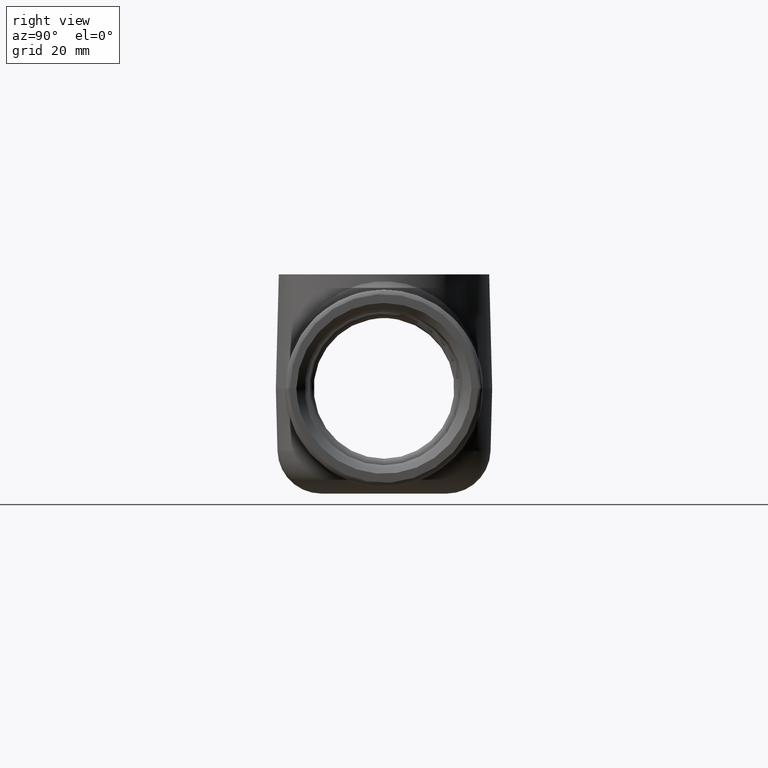
[diagram: clean part render]
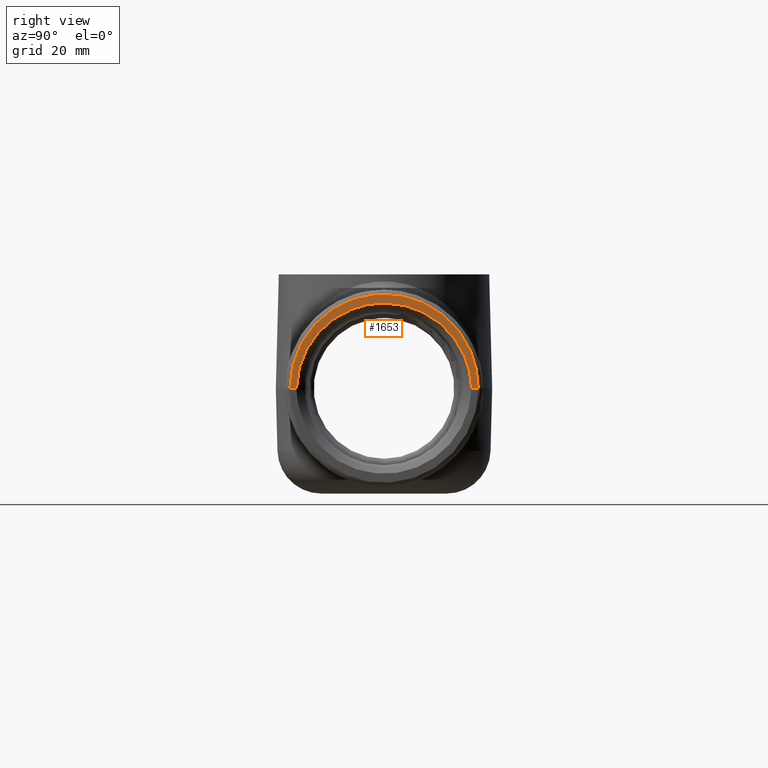
[diagram: same view with one face highlighted and labeled with its STEP entity id]
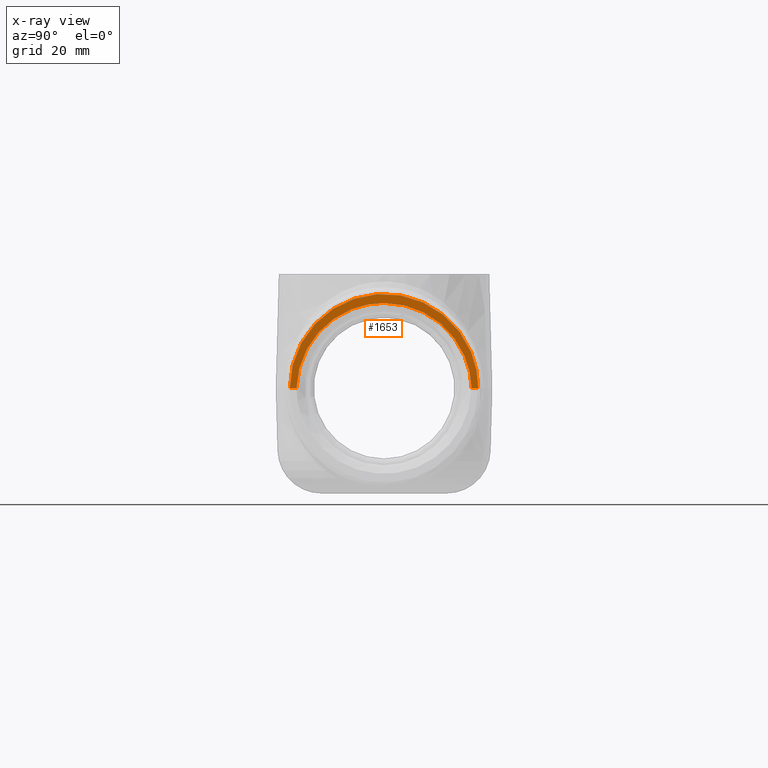
[diagram: x-ray of the same camera — body ghosted, the highlighted face saturated]
A machine part, right view. The second image highlights one B-rep face of the part: STEP entity #1653.
The next image is the same camera in x-ray: the body ghosted, the highlighted face saturated — about 0% of this face is hidden behind the body in this view.
In plain terms, the highlighted planar face has unit normal (-0.9997, 0, -0.0262).
Its self-contained STEP definition (entity closure, byte-faithful):
#67=ELLIPSE('',#1785,1.34346037031524,1.343);
#68=ELLIPSE('',#1786,1.25128650088097,1.25042878458186);
#69=ELLIPSE('',#1787,1.25128650088097,1.25042878458186);
#97=PLANE('',#1784);
#147=FACE_OUTER_BOUND('',#247,.T.);
#247=EDGE_LOOP('',(#1129,#1130,#1131,#1132,#1133));
#354=LINE('',#2641,#434);
#355=LINE('',#2645,#435);
#434=VECTOR('',#2010,0.0929989874574439);
#435=VECTOR('',#2013,0.0929989874574444);
#691=VERTEX_POINT('',#2639);
#692=VERTEX_POINT('',#2640);
#693=VERTEX_POINT('',#2642);
#694=VERTEX_POINT('',#2644);
#695=VERTEX_POINT('',#2646);
#861=EDGE_CURVE('',#691,#692,#354,.T.);
#862=EDGE_CURVE('',#692,#693,#67,.F.);
#863=EDGE_CURVE('',#693,#694,#355,.T.);
#864=EDGE_CURVE('',#695,#694,#68,.F.);
#865=EDGE_CURVE('',#691,#695,#69,.F.);
#1129=ORIENTED_EDGE('',*,*,#861,.T.);
#1130=ORIENTED_EDGE('',*,*,#862,.T.);
#1131=ORIENTED_EDGE('',*,*,#863,.T.);
#1132=ORIENTED_EDGE('',*,*,#864,.F.);
#1133=ORIENTED_EDGE('',*,*,#865,.F.);
#1653=ADVANCED_FACE('',(#147),#97,.F.);
#1784=AXIS2_PLACEMENT_3D('',#2638,#2008,#2009);
#1785=AXIS2_PLACEMENT_3D('',#2643,#2011,#2012);
#1786=AXIS2_PLACEMENT_3D('',#2647,#2014,#2015);
#1787=AXIS2_PLACEMENT_3D('',#2648,#2016,#2017);
#2008=DIRECTION('center_axis',(-0.999657324975557,0.,-0.0261769483078732));
#2009=DIRECTION('ref_axis',(-0.0261769483078732,0.,0.999657324975557));
#2010=DIRECTION('',(0.,1.,0.));
#2011=DIRECTION('center_axis',(-0.999657324975557,0.,-0.0261769483078732));
#2012=DIRECTION('ref_axis',(0.0261769483078731,0.,-0.999657324975557));
#2013=DIRECTION('',(0.,1.,0.));
#2014=DIRECTION('center_axis',(-0.999657324975557,0.,-0.0261769483078732));
#2015=DIRECTION('ref_axis',(0.0261769483078731,0.,-0.999657324975557));
#2016=DIRECTION('center_axis',(-0.999657324975557,0.,-0.0261769483078732));
#2017=DIRECTION('ref_axis',(0.0261769483078731,0.,-0.999657324975557));
#2638=CARTESIAN_POINT('Origin',(4.73005212254993,0.,0.));
#2639=CARTESIAN_POINT('',(4.73005212254993,1.25,5.06245581325909E-15));
#2640=CARTESIAN_POINT('',(4.73005212254993,1.34299898745744,0.));
#2641=CARTESIAN_POINT('',(4.73005212254993,1.25,0.));
#2642=CARTESIAN_POINT('',(4.73005212254993,-1.34299898745744,0.));
#2643=CARTESIAN_POINT('Origin',(4.73000893809646,0.,0.00164914774339601));
#2644=CARTESIAN_POINT('',(4.73005212254993,-1.25,5.06245581325909E-15));
#2645=CARTESIAN_POINT('',(4.73005212254993,-1.34299898745744,0.));
#2646=CARTESIAN_POINT('',(4.69815497674673,-1.49174576142437E-16,1.2181028541968));
#2647=CARTESIAN_POINT('Origin',(4.73090983879863,0.,-0.0327548620519007));
#2648=CARTESIAN_POINT('Origin',(4.73090983879863,0.,-0.0327548620519007));